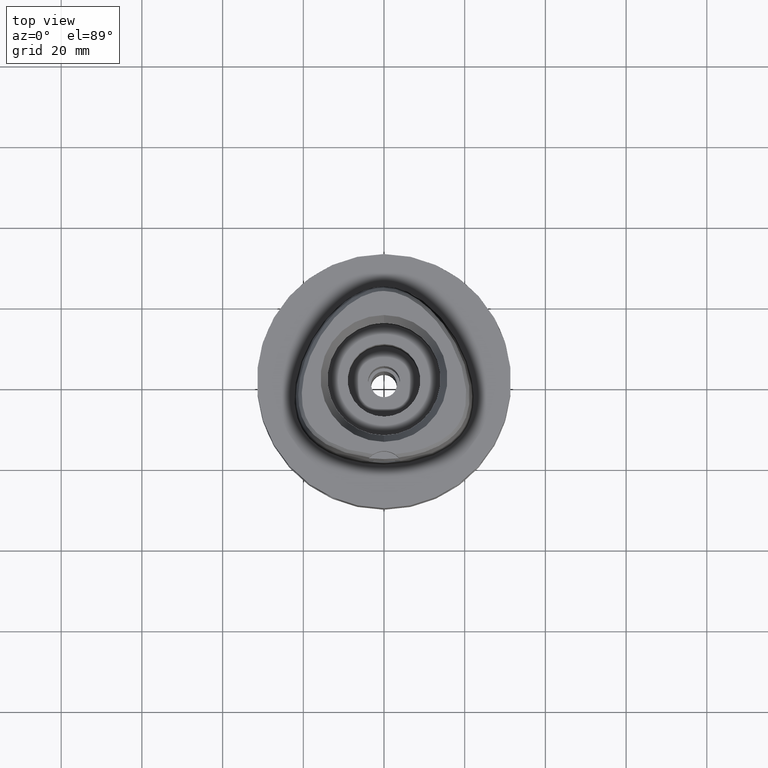
[diagram: clean part render]
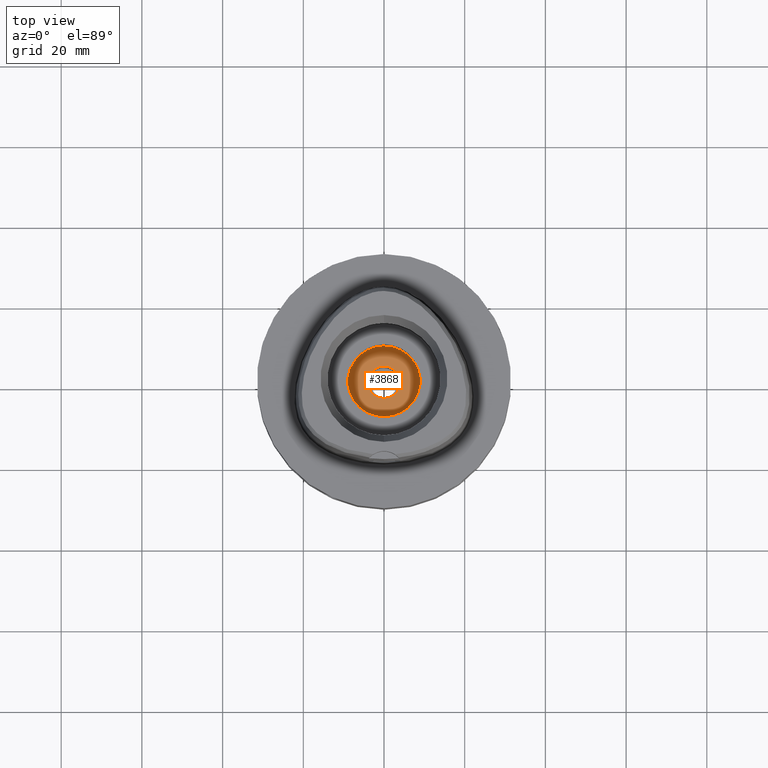
[diagram: same view with one face highlighted and labeled with its STEP entity id]
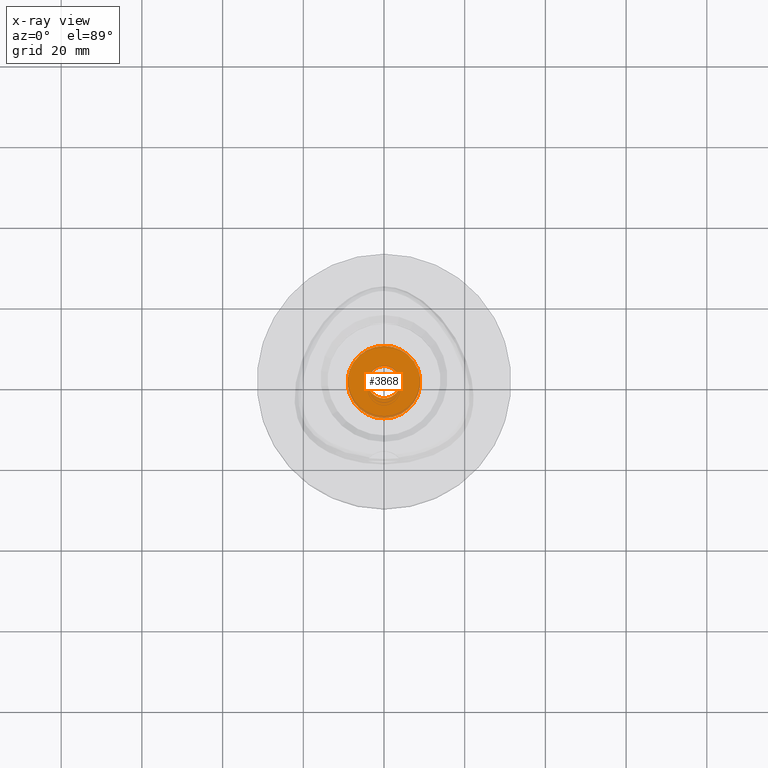
[diagram: x-ray of the same camera — body ghosted, the highlighted face saturated]
A machine part, top view. The second image highlights one B-rep face of the part: STEP entity #3868.
The next image is the same camera in x-ray: the body ghosted, the highlighted face saturated — about 4% of this face is hidden behind the body in this view.
In plain terms, the highlighted planar face has unit normal (0, 0, -1).
Its self-contained STEP definition (entity closure, byte-faithful):
#135 = ORIENTED_EDGE ( 'NONE', *, *, #427, .F. ) ;
#222 = CARTESIAN_POINT ( 'NONE',  ( 0.0000000000000000000, 1.293227019899999867E-14, -16.00000000000000000 ) ) ;
#427 = EDGE_CURVE ( 'NONE', #3314, #2485, #3769, .T. ) ;
#544 = FACE_OUTER_BOUND ( 'NONE', #2251, .T. ) ;
#776 = CIRCLE ( 'NONE', #4218, 9.000000000000000000 ) ;
#861 = AXIS2_PLACEMENT_3D ( 'NONE', #4708, #2815, #1197 ) ;
#933 = AXIS2_PLACEMENT_3D ( 'NONE', #222, #3848, #2667 ) ;
#962 = PLANE ( 'NONE',  #3497 ) ;
#1197 = DIRECTION ( 'NONE',  ( 0.0000000000000000000, 1.000000000000000000, 0.0000000000000000000 ) ) ;
#1258 = CARTESIAN_POINT ( 'NONE',  ( 0.0000000000000000000, -4.000000000000000000, -16.00000000000000000 ) ) ;
#1362 = CARTESIAN_POINT ( 'NONE',  ( 0.0000000000000000000, 9.000000000000000000, -16.00000000000000000 ) ) ;
#1578 = VERTEX_POINT ( 'NONE', #1362 ) ;
#1582 = DIRECTION ( 'NONE',  ( 0.0000000000000000000, 1.000000000000000000, 0.0000000000000000000 ) ) ;
#1796 = DIRECTION ( 'NONE',  ( 0.0000000000000000000, 0.0000000000000000000, -1.000000000000000000 ) ) ;
#1813 = DIRECTION ( 'NONE',  ( 0.0000000000000000000, 0.0000000000000000000, -1.000000000000000000 ) ) ;
#1889 = EDGE_LOOP ( 'NONE', ( #135, #4659 ) ) ;
#2140 = CARTESIAN_POINT ( 'NONE',  ( 0.0000000000000000000, 4.000000000000000000, -16.00000000000000000 ) ) ;
#2210 = ORIENTED_EDGE ( 'NONE', *, *, #3179, .F. ) ;
#2251 = EDGE_LOOP ( 'NONE', ( #2210, #4386 ) ) ;
#2305 = DIRECTION ( 'NONE',  ( 0.0000000000000000000, 0.0000000000000000000, 1.000000000000000000 ) ) ;
#2474 = FACE_BOUND ( 'NONE', #1889, .T. ) ;
#2485 = VERTEX_POINT ( 'NONE', #1258 ) ;
#2596 = CARTESIAN_POINT ( 'NONE',  ( 0.0000000000000000000, 0.0000000000000000000, -16.00000000000000000 ) ) ;
#2667 = DIRECTION ( 'NONE',  ( 0.0000000000000000000, -1.000000000000000000, 0.0000000000000000000 ) ) ;
#2695 = EDGE_CURVE ( 'NONE', #3498, #1578, #776, .T. ) ;
#2791 = AXIS2_PLACEMENT_3D ( 'NONE', #4286, #2305, #1582 ) ;
#2815 = DIRECTION ( 'NONE',  ( 0.0000000000000000000, 0.0000000000000000000, -1.000000000000000000 ) ) ;
#3015 = CARTESIAN_POINT ( 'NONE',  ( 0.0000000000000000000, -9.000000000000000000, -16.00000000000000000 ) ) ;
#3152 = CIRCLE ( 'NONE', #933, 4.000000000000000000 ) ;
#3179 = EDGE_CURVE ( 'NONE', #1578, #3498, #3983, .T. ) ;
#3272 = DIRECTION ( 'NONE',  ( 0.0000000000000000000, -1.000000000000000000, 0.0000000000000000000 ) ) ;
#3314 = VERTEX_POINT ( 'NONE', #2140 ) ;
#3392 = DIRECTION ( 'NONE',  ( 0.0000000000000000000, -1.000000000000000000, 0.0000000000000000000 ) ) ;
#3497 = AXIS2_PLACEMENT_3D ( 'NONE', #4095, #1796, #3272 ) ;
#3498 = VERTEX_POINT ( 'NONE', #3015 ) ;
#3769 = CIRCLE ( 'NONE', #2791, 4.000000000000000000 ) ;
#3848 = DIRECTION ( 'NONE',  ( 0.0000000000000000000, 0.0000000000000000000, 1.000000000000000000 ) ) ;
#3868 = ADVANCED_FACE ( 'NONE', ( #544, #2474 ), #962, .F. ) ;
#3983 = CIRCLE ( 'NONE', #861, 9.000000000000000000 ) ;
#4095 = CARTESIAN_POINT ( 'NONE',  ( 0.0000000000000000000, 1.028703311283999754E-14, -16.00000000000000000 ) ) ;
#4218 = AXIS2_PLACEMENT_3D ( 'NONE', #2596, #1813, #3392 ) ;
#4286 = CARTESIAN_POINT ( 'NONE',  ( 0.0000000000000000000, 1.293227019899999867E-14, -16.00000000000000000 ) ) ;
#4386 = ORIENTED_EDGE ( 'NONE', *, *, #2695, .F. ) ;
#4606 = EDGE_CURVE ( 'NONE', #2485, #3314, #3152, .T. ) ;
#4659 = ORIENTED_EDGE ( 'NONE', *, *, #4606, .F. ) ;
#4708 = CARTESIAN_POINT ( 'NONE',  ( 0.0000000000000000000, 0.0000000000000000000, -16.00000000000000000 ) ) ;